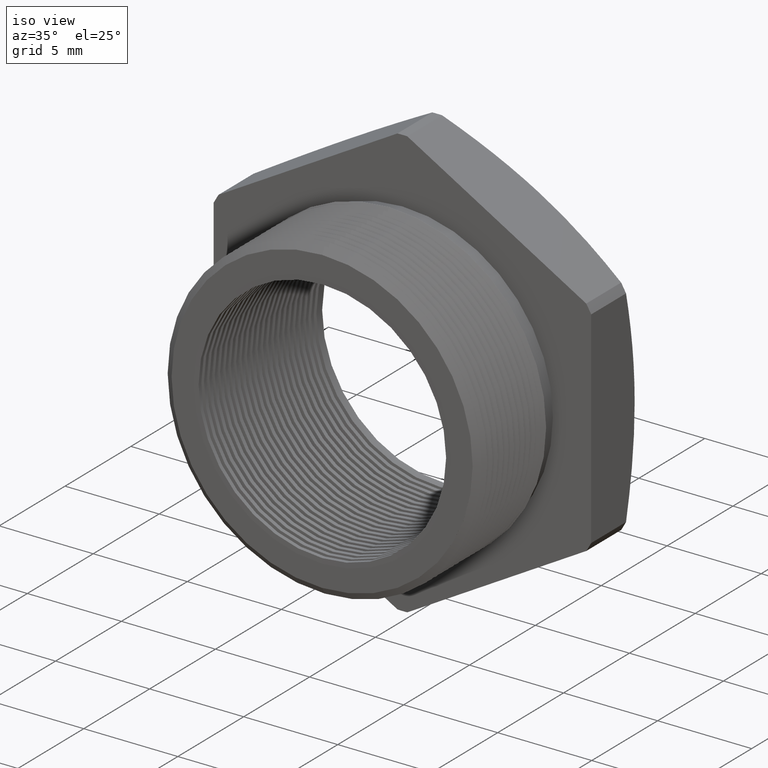
[diagram: clean part render]
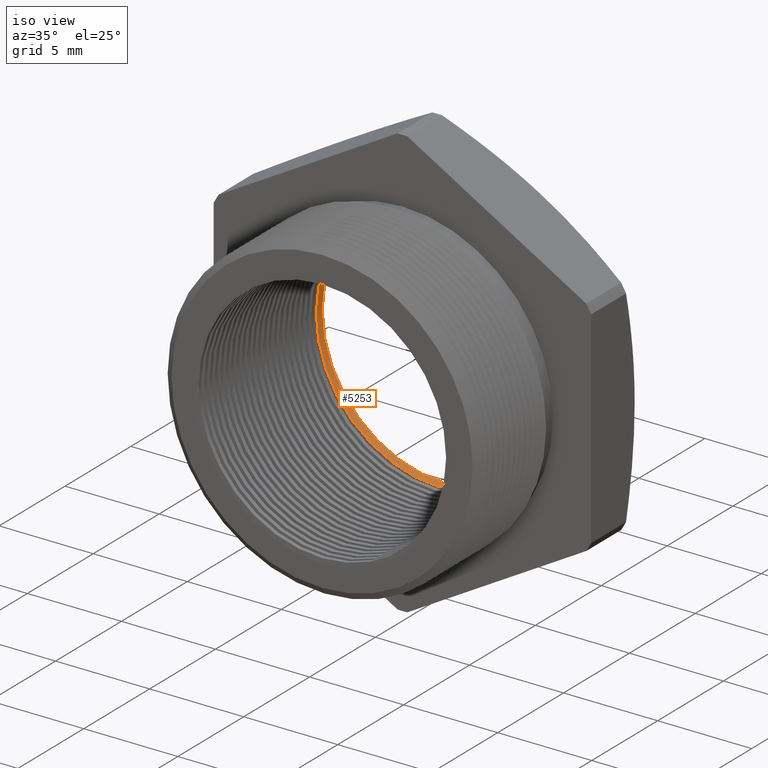
[diagram: same view with one face highlighted and labeled with its STEP entity id]
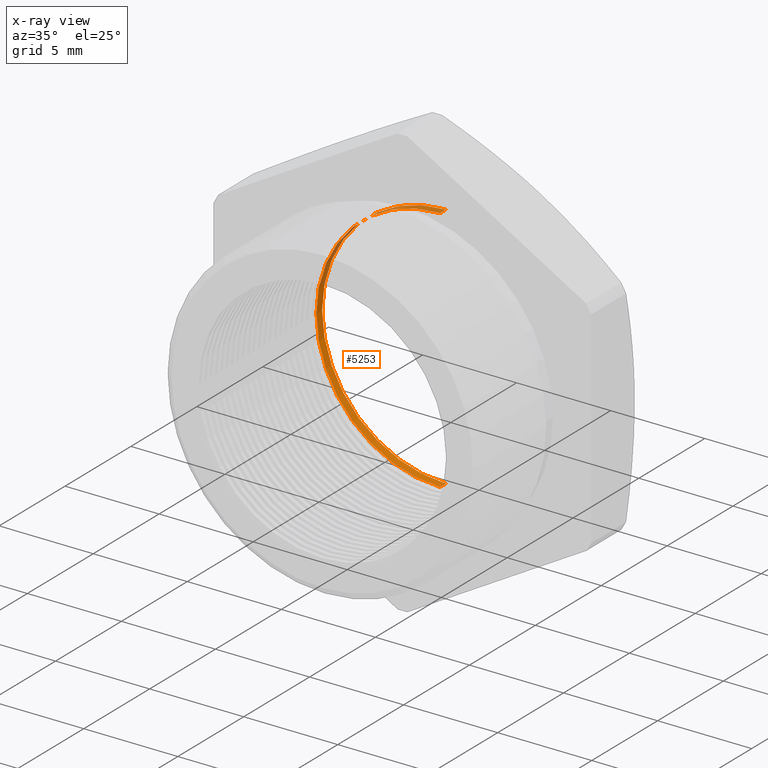
[diagram: x-ray of the same camera — body ghosted, the highlighted face saturated]
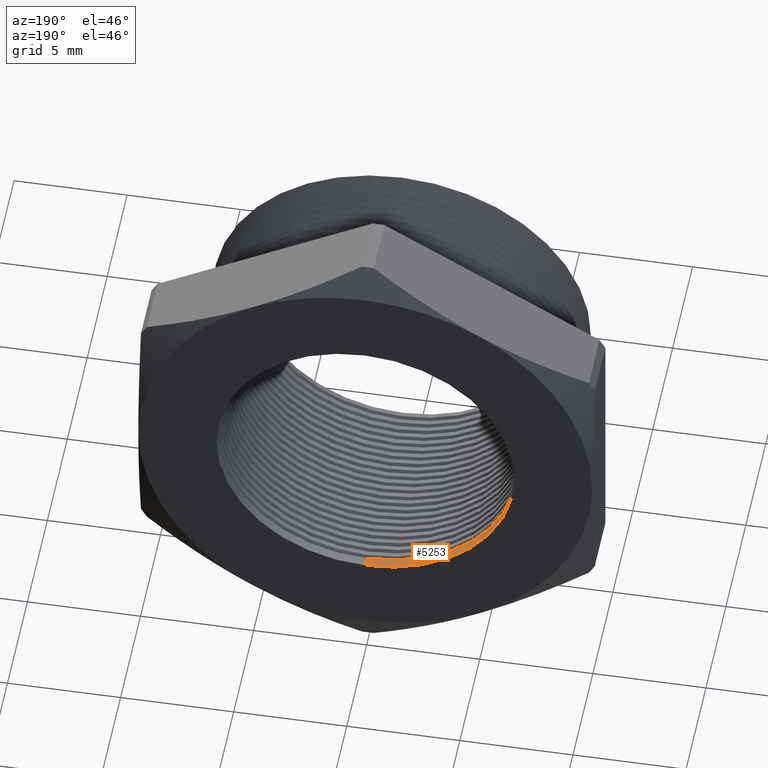
[diagram: same view with one face highlighted and labeled with its STEP entity id]
A machine part, iso view. The second image highlights one B-rep face of the part: STEP entity #5253.
The next image is the same camera in x-ray: the body ghosted, the highlighted face saturated — about 22% of this face is hidden behind the body in this view.
A second angle (auxiliary view) of the same face is appended — the face is thin or edge-on in the first view.
In plain terms, the highlighted cylindrical surface (partial cylindrical patch) has radius 6.5783 mm, axis along (-0, -1, -0).
Its self-contained STEP definition (entity closure, byte-faithful):
#3398 = CARTESIAN_POINT ( 'NONE',  ( 0.0000000000000000000, 0.3903219653570460000, 0.0000000000000000000 ) ) ;
#3431 = CIRCLE ( 'NONE', #3487, 0.2589880461203001900 ) ;
#3432 = FACE_OUTER_BOUND ( 'NONE', #5254, .T. ) ;
#3457 = DIRECTION ( 'NONE',  ( 0.0000000000000000000, 0.0000000000000000000, -1.000000000000000000 ) ) ;
#3458 = DIRECTION ( 'NONE',  ( -0.0000000000000000000, 1.000000000000000000, -0.0000000000000000000 ) ) ;
#3459 = AXIS2_PLACEMENT_3D ( 'NONE', #3398, #3458, #3457 ) ;
#3460 = CIRCLE ( 'NONE', #3459, 0.2589880461203001900 ) ;
#3477 = CARTESIAN_POINT ( 'NONE',  ( 0.0000000000000000000, 0.3903219653570460000, -0.2589880461203001900 ) ) ;
#3482 = CARTESIAN_POINT ( 'NONE',  ( 0.0000000000000000000, 0.4075548905829479200, -0.2589880461203001900 ) ) ;
#3483 = CARTESIAN_POINT ( 'NONE',  ( 3.171688816986526800E-017, 0.4075548905829479200, 0.2589880461203001900 ) ) ;
#3484 = DIRECTION ( 'NONE',  ( 0.0000000000000000000, 0.0000000000000000000, -1.000000000000000000 ) ) ;
#3485 = DIRECTION ( 'NONE',  ( -0.0000000000000000000, -1.000000000000000000, -0.0000000000000000000 ) ) ;
#3486 = CARTESIAN_POINT ( 'NONE',  ( 0.0000000000000000000, 0.4075548905829479200, 0.0000000000000000000 ) ) ;
#3487 = AXIS2_PLACEMENT_3D ( 'NONE', #3486, #3485, #3484 ) ;
#3488 = DIRECTION ( 'NONE',  ( 0.0000000000000000000, 0.0000000000000000000, -1.000000000000000000 ) ) ;
#3489 = DIRECTION ( 'NONE',  ( -0.0000000000000000000, -1.000000000000000000, -0.0000000000000000000 ) ) ;
#3490 = CARTESIAN_POINT ( 'NONE',  ( 0.0000000000000000000, 0.0000000000000000000, 0.0000000000000000000 ) ) ;
#3491 = AXIS2_PLACEMENT_3D ( 'NONE', #3490, #3489, #3488 ) ;
#3492 = CYLINDRICAL_SURFACE ( 'NONE', #3491, 0.2589880461203001900 ) ;
#3532 = DIRECTION ( 'NONE',  ( -0.0000000000000000000, -1.000000000000000000, -0.0000000000000000000 ) ) ;
#3533 = VECTOR ( 'NONE', #3532, 39.37007874015748100 ) ;
#3534 = CARTESIAN_POINT ( 'NONE',  ( 0.0000000000000000000, 0.0000000000000000000, -0.2589880461203001900 ) ) ;
#3535 = LINE ( 'NONE', #3534, #3533 ) ;
#3536 = DIRECTION ( 'NONE',  ( -0.0000000000000000000, -1.000000000000000000, -0.0000000000000000000 ) ) ;
#3537 = VECTOR ( 'NONE', #3536, 39.37007874015748100 ) ;
#3538 = CARTESIAN_POINT ( 'NONE',  ( 3.171688816986526800E-017, 0.0000000000000000000, 0.2589880461203001900 ) ) ;
#3539 = LINE ( 'NONE', #3538, #3537 ) ;
#3615 = CARTESIAN_POINT ( 'NONE',  ( 3.171688816986526800E-017, 0.3903219653570460000, 0.2589880461203001900 ) ) ;
#5242 = EDGE_CURVE ( 'NONE', #5263, #5323, #3460, .T. ) ;
#5253 = ADVANCED_FACE ( 'NONE', ( #3432 ), #3492, .F. ) ;
#5254 = EDGE_LOOP ( 'NONE', ( #5255, #5298, #5300, #5301 ) ) ;
#5255 = ORIENTED_EDGE ( 'NONE', *, *, #5256, .F. ) ;
#5256 = EDGE_CURVE ( 'NONE', #5257, #5258, #3431, .T. ) ;
#5257 = VERTEX_POINT ( 'NONE', #3483 ) ;
#5258 = VERTEX_POINT ( 'NONE', #3482 ) ;
#5263 = VERTEX_POINT ( 'NONE', #3477 ) ;
#5298 = ORIENTED_EDGE ( 'NONE', *, *, #5299, .T. ) ;
#5299 = EDGE_CURVE ( 'NONE', #5257, #5323, #3539, .T. ) ;
#5300 = ORIENTED_EDGE ( 'NONE', *, *, #5242, .F. ) ;
#5301 = ORIENTED_EDGE ( 'NONE', *, *, #5302, .F. ) ;
#5302 = EDGE_CURVE ( 'NONE', #5258, #5263, #3535, .T. ) ;
#5323 = VERTEX_POINT ( 'NONE', #3615 ) ;